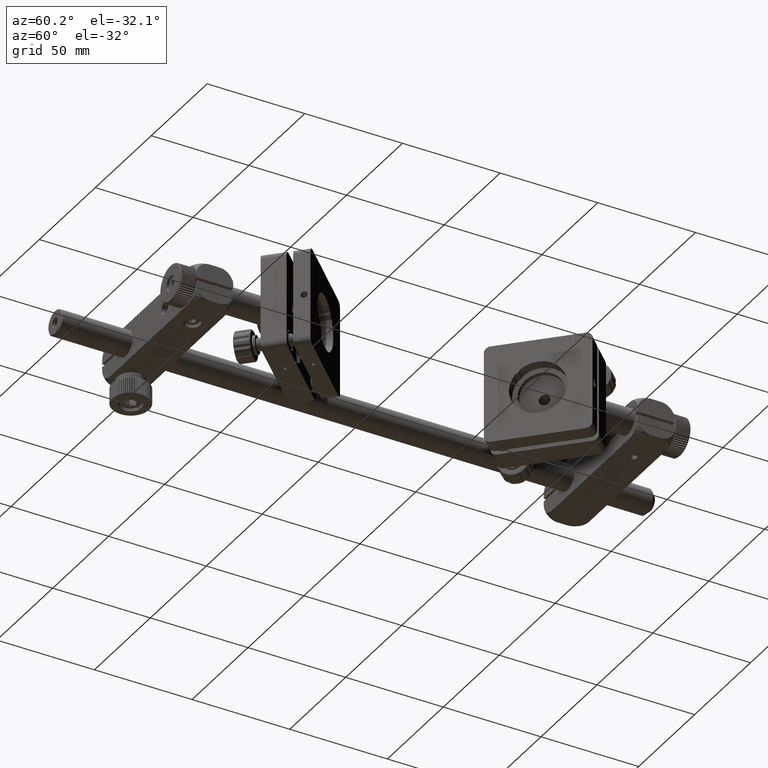
[diagram: clean part render]
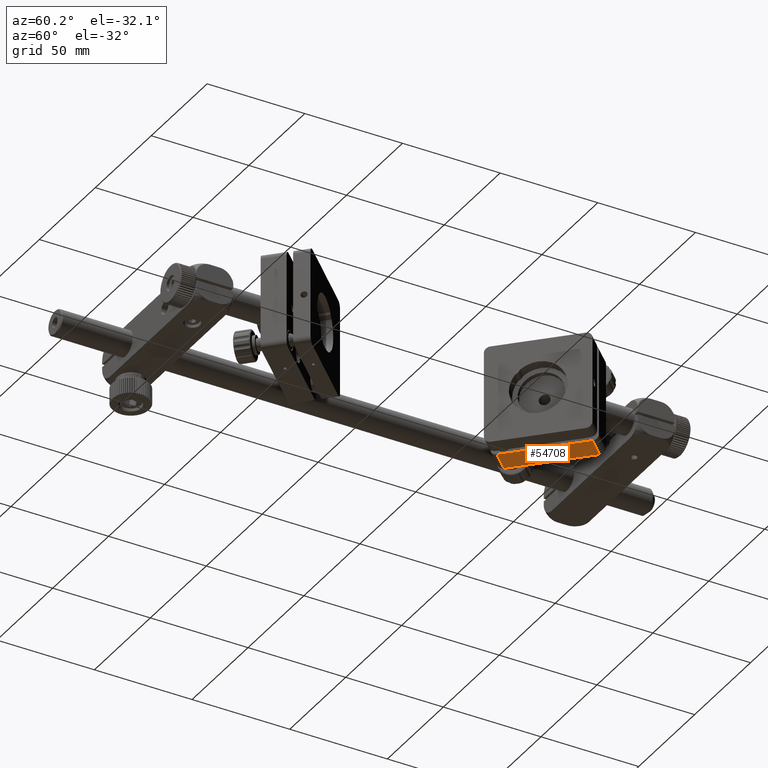
[diagram: same view with one face highlighted and labeled with its STEP entity id]
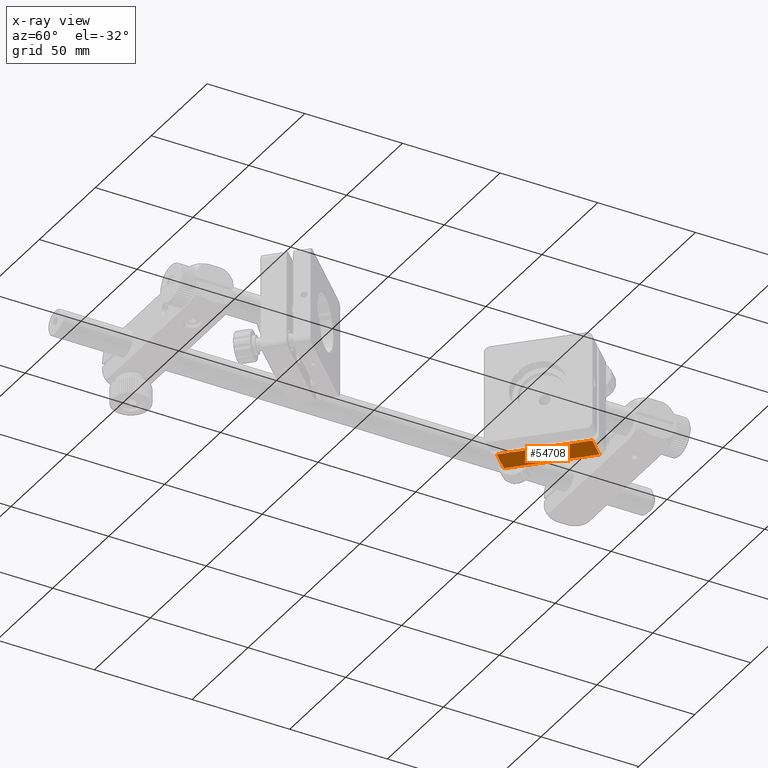
[diagram: x-ray of the same camera — body ghosted, the highlighted face saturated]
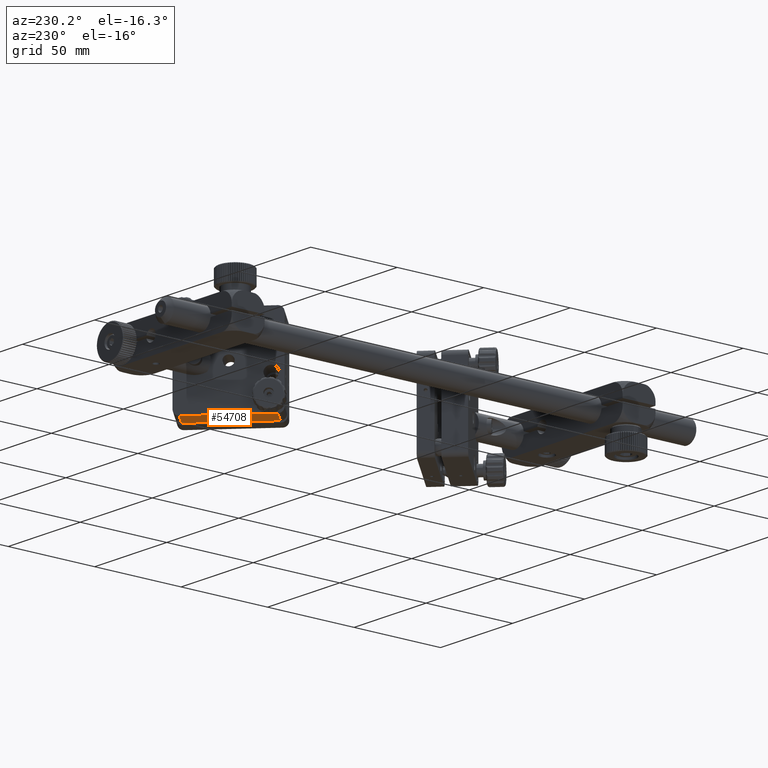
[diagram: same view with one face highlighted and labeled with its STEP entity id]
A machine part, auxiliary view. The second image highlights one B-rep face of the part: STEP entity #54708.
The next image is the same camera in x-ray: the body ghosted, the highlighted face saturated — about 0% of this face is hidden behind the body in this view.
A second angle (auxiliary view) of the same face is appended — the face is thin or edge-on in the first view.
In plain terms, the highlighted planar face has unit normal (0, -0, -1).
Its self-contained STEP definition (entity closure, byte-faithful):
#491 = AXIS2_PLACEMENT_3D ( 'NONE', #57298, #7446, #37840 ) ;
#618 = VERTEX_POINT ( 'NONE', #57081 ) ;
#1180 = CARTESIAN_POINT ( 'NONE',  ( 58.93226622233709833, 260.3087993329085066, -25.00000000000007816 ) ) ;
#7446 = DIRECTION ( 'NONE',  ( 2.349793448154361243E-16, -8.085727477725608505E-16, -1.000000000000000000 ) ) ;
#8021 = VERTEX_POINT ( 'NONE', #26069 ) ;
#8068 = PLANE ( 'NONE',  #491 ) ;
#8783 = EDGE_CURVE ( 'NONE', #618, #8021, #11725, .T. ) ;
#8890 = EDGE_CURVE ( 'NONE', #38912, #41394, #17808, .T. ) ;
#10330 = LINE ( 'NONE', #15124, #35806 ) ;
#11725 = LINE ( 'NONE', #46235, #33174 ) ;
#12977 = DIRECTION ( 'NONE',  ( 0.7071067811865531239, 0.7071067811865419106, -4.055917848748449235E-16 ) ) ;
#14714 = DIRECTION ( 'NONE',  ( 0.7071067811865531239, 0.7071067811865419106, -4.055917848748449235E-16 ) ) ;
#15124 = CARTESIAN_POINT ( 'NONE',  ( 58.93226622233709833, 260.3087993329085066, -25.00000000000007816 ) ) ;
#16005 = ORIENTED_EDGE ( 'NONE', *, *, #49588, .T. ) ;
#17457 = CARTESIAN_POINT ( 'NONE',  ( 27.81956785012885902, 229.1961009607006758, -25.00000000000005329 ) ) ;
#17568 = EDGE_LOOP ( 'NONE', ( #27335, #61929, #20253, #16005 ) ) ;
#17808 = LINE ( 'NONE', #31864, #44486 ) ;
#20253 = ORIENTED_EDGE ( 'NONE', *, *, #8890, .T. ) ;
#21933 = DIRECTION ( 'NONE',  ( 0.7071067811865432429, -0.7071067811865517916, -1.891563679692798081E-16 ) ) ;
#23351 = CARTESIAN_POINT ( 'NONE',  ( 27.81956785012885902, 229.1961009607006758, -25.00000000000005329 ) ) ;
#26069 = CARTESIAN_POINT ( 'NONE',  ( 67.41754759657555951, 251.8235179586699246, -25.00000000000008527 ) ) ;
#27335 = ORIENTED_EDGE ( 'NONE', *, *, #8783, .F. ) ;
#31750 = FACE_OUTER_BOUND ( 'NONE', #17568, .T. ) ;
#31864 = CARTESIAN_POINT ( 'NONE',  ( 58.93226622233709833, 260.3087993329085066, -25.00000000000007816 ) ) ;
#33174 = VECTOR ( 'NONE', #14714, 1000.000000000000000 ) ;
#35806 = VECTOR ( 'NONE', #39144, 1000.000000000000000 ) ;
#37840 = DIRECTION ( 'NONE',  ( 0.7071067811865531239, 0.7071067811865419106, -4.055917848748449728E-16 ) ) ;
#38912 = VERTEX_POINT ( 'NONE', #23351 ) ;
#39144 = DIRECTION ( 'NONE',  ( 0.7071067811865432429, -0.7071067811865517916, -1.891563679692798081E-16 ) ) ;
#39749 = EDGE_CURVE ( 'NONE', #38912, #618, #56111, .T. ) ;
#41394 = VERTEX_POINT ( 'NONE', #1180 ) ;
#44486 = VECTOR ( 'NONE', #12977, 1000.000000000000000 ) ;
#46235 = CARTESIAN_POINT ( 'NONE',  ( 67.41754759657555951, 251.8235179586699246, -25.00000000000008527 ) ) ;
#48066 = VECTOR ( 'NONE', #21933, 1000.000000000000000 ) ;
#49588 = EDGE_CURVE ( 'NONE', #41394, #8021, #10330, .T. ) ;
#54708 = ADVANCED_FACE ( 'NONE', ( #31750 ), #8068, .T. ) ;
#56111 = LINE ( 'NONE', #17457, #48066 ) ;
#57081 = CARTESIAN_POINT ( 'NONE',  ( 36.30484922436726691, 220.7108195864620370, -25.00000000000006040 ) ) ;
#57298 = CARTESIAN_POINT ( 'NONE',  ( 58.93226622233709833, 260.3087993329085066, -25.00000000000007816 ) ) ;
#61929 = ORIENTED_EDGE ( 'NONE', *, *, #39749, .F. ) ;